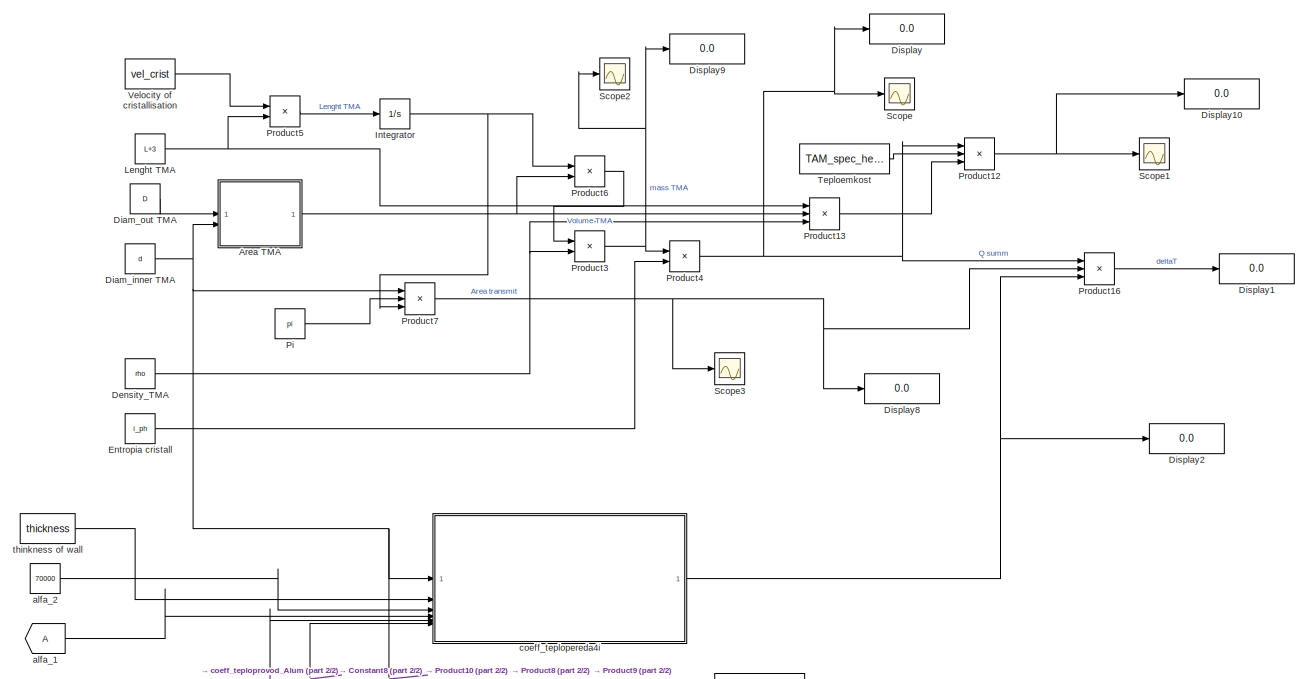
[diagram: root canvas - part 1/2, full width, middle band]
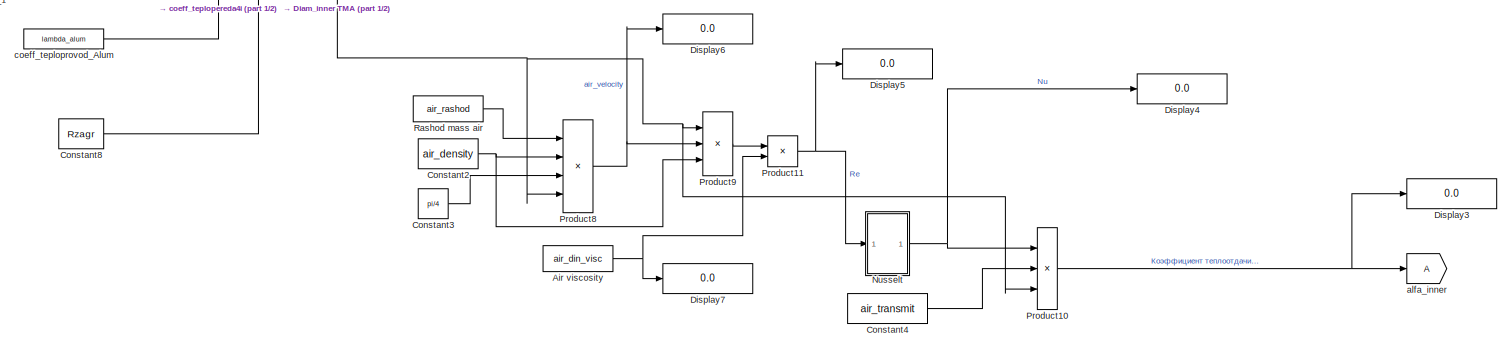
[diagram: root canvas - part 2/2, full width, bottom band]
MODEL slx_45f066141a9b
KIND model
CONFIG AbsTol = auto
CONFIG EnableMultiTasking = off
CONFIG FixedStep = auto
CONFIG MaxStep = auto
CONFIG MinStep = auto
CONFIG RelTol = 1e-3
CONFIG SampleTimeConstraint = Unconstrained
CONFIG SolverName = FixedStepAuto
CONFIG StartTime = 0.0
CONFIG StopTime = 2000
BLOCK [Constant] Air viscosity
  Value = air_din_visc
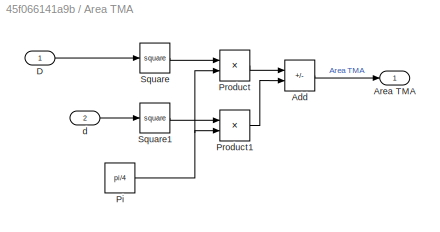
BLOCK [SubSystem] Area TMA
BLOCK [Sum] Area TMA/Add
  IconShape = rectangular
  Inputs = +-
BLOCK [Outport] Area TMA/Area TMA
BLOCK [Inport] Area TMA/D
BLOCK [Constant] Area TMA/Pi
  OutDataTypeStr = Inherit: Inherit via back propagation
  Value = pi/4
BLOCK [Product] Area TMA/Product
BLOCK [Product] Area TMA/Product1
BLOCK [Math] Area TMA/Square
  Operator = square
BLOCK [Math] Area TMA/Square1
  Operator = square
BLOCK [Inport] Area TMA/d
  Port = 2
BLOCK [Constant] Constant2
  Value = air_density
BLOCK [Constant] Constant3
  Value = pi/4
BLOCK [Constant] Constant4
  Value = air_transmit
BLOCK [Constant] Constant8
  Value = Rzagr
BLOCK [Constant] Density_TMA
  Value = rho
BLOCK [Constant] Diam_inner TMA
  Value = d
BLOCK [Constant] Diam_out TMA
  Value = D
BLOCK [Display] Display
  Decimation = 1
BLOCK [Display] Display1
  Decimation = 1
BLOCK [Display] Display10
  Decimation = 1
BLOCK [Display] Display2
  Decimation = 1
BLOCK [Display] Display3
  Decimation = 1
BLOCK [Display] Display4
  Decimation = 1
BLOCK [Display] Display5
  Decimation = 1
BLOCK [Display] Display6
  Decimation = 1
BLOCK [Display] Display7
  Decimation = 1
BLOCK [Display] Display8
  Decimation = 1
BLOCK [Display] Display9
  Decimation = 1
BLOCK [Constant] Entropia cristall
  Value = i_ph
BLOCK [Integrator] Integrator
  InitialCondition = 0.001
  LimitOutput = on
  UpperSaturationLimit = 1
BLOCK [Constant] Lenght TMA
  Value = L+3
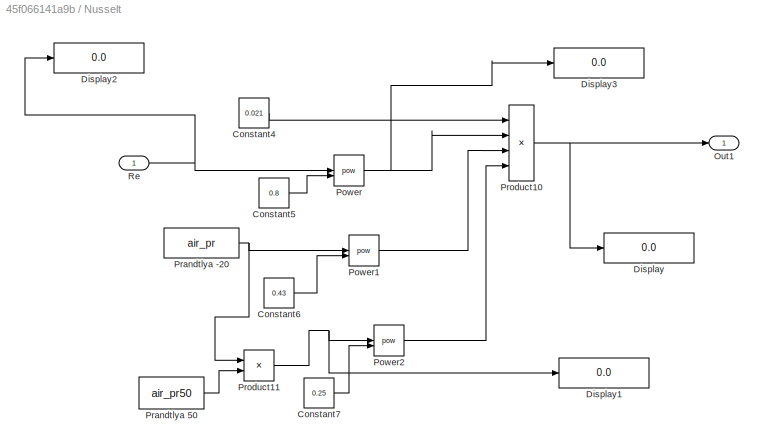
BLOCK [SubSystem] Nusselt
BLOCK [Constant] Nusselt/Constant4
  Value = 0.021
BLOCK [Constant] Nusselt/Constant5
  Value = 0.8
BLOCK [Constant] Nusselt/Constant6
  Value = 0.43
BLOCK [Constant] Nusselt/Constant7
  Value = 0.25
BLOCK [Display] Nusselt/Display
  Decimation = 1
BLOCK [Display] Nusselt/Display1
  Decimation = 1
BLOCK [Display] Nusselt/Display2
  Decimation = 1
BLOCK [Display] Nusselt/Display3
  Decimation = 1
BLOCK [Outport] Nusselt/Out1
BLOCK [Math] Nusselt/Power
  Operator = pow
BLOCK [Math] Nusselt/Power1
  Operator = pow
BLOCK [Math] Nusselt/Power2
  Operator = pow
BLOCK [Constant] Nusselt/Prandtlya -20
  Value = air_pr
BLOCK [Constant] Nusselt/Prandtlya 50
  Value = air_pr50
BLOCK [Product] Nusselt/Product10
  Inputs = 4
BLOCK [Product] Nusselt/Product11
  Inputs = */
BLOCK [Inport] Nusselt/Re
BLOCK [Constant] Pi
  OutDataTypeStr = Inherit: Inherit via back propagation
  Value = pi
BLOCK [Product] Product10
  Inputs = **/
BLOCK [Product] Product11
  Inputs = */
BLOCK [Product] Product12
  Inputs = *//
BLOCK [Product] Product13
  Inputs = 3
BLOCK [Product] Product16
  Inputs = *//
BLOCK [Product] Product3
BLOCK [Product] Product4
BLOCK [Product] Product5
  Inputs = */
BLOCK [Product] Product6
BLOCK [Product] Product7
  Inputs = 3
BLOCK [Product] Product8
  Inputs = *///
BLOCK [Product] Product9
  Inputs = 3
BLOCK [Constant] Rashod mass air
  Value = air_rashod
BLOCK [Scope] Scope
  Floating = off
  NumInputPorts = 1
  ScopeSpecificationString = Simulink.scopes.TimeScopeBlockCfg('CurrentConfiguration', extmgr.ConfigurationSet(extmgr.Configuration('Core','General UI',true),extmgr.Configuration('Core','Source UI',true),extmgr.Configuration('Sources','WiredSimulink',true),extmgr.Configuration('Visuals','Time Domain',true,'SerializedDisplays',{struct('MinYLimReal','-340470.10383','MaxYLimReal','3064230.9345','YLabelReal','','MinYLimMag','    ...<+1539ch>
BLOCK [Scope] Scope1
  Floating = off
  NumInputPorts = 1
  ScopeSpecificationString = Simulink.scopes.TimeScopeBlockCfg('CurrentConfiguration', extmgr.ConfigurationSet(extmgr.Configuration('Core','General UI',true),extmgr.Configuration('Core','Source UI',true),extmgr.Configuration('Sources','WiredSimulink',true,'DataLoggingVariableName','ScopeData1'),extmgr.Configuration('Visuals','Time Domain',true,'SerializedDisplays',{struct('MinYLimReal','-18.0625','MaxYLimReal','162.5625','YLa...<+1547ch>
BLOCK [Scope] Scope2
  Floating = off
  NumInputPorts = 1
  ScopeSpecificationString = Simulink.scopes.TimeScopeBlockCfg('CurrentConfiguration', extmgr.ConfigurationSet(extmgr.Configuration('Core','General UI',true),extmgr.Configuration('Core','Source UI',true),extmgr.Configuration('Sources','WiredSimulink',true,'DataLoggingVariableName','ScopeData1'),extmgr.Configuration('Visuals','Time Domain',true,'SerializedDisplays',{struct('MinYLimReal','-1.16749','MaxYLimReal','10.6017','YLab...<+1456ch>
BLOCK [Scope] Scope3
  Floating = off
  NumInputPorts = 1
  ScopeSpecificationString = Simulink.scopes.TimeScopeBlockCfg('CurrentConfiguration', extmgr.ConfigurationSet(extmgr.Configuration('Core','General UI',true),extmgr.Configuration('Core','Source UI',true),extmgr.Configuration('Sources','WiredSimulink',true,'DataLoggingVariableName','ScopeData2'),extmgr.Configuration('Visuals','Time Domain',true,'SerializedDisplays',{struct('MinYLimReal','-0.01946','MaxYLimReal','0.17669','YLab...<+1461ch>
BLOCK [Constant] Teploemkost
  Value = TAM_spec_heat
BLOCK [Constant] Velocity of cristallisation
  Value = vel_crist
BLOCK [From] alfa_1
BLOCK [Constant] alfa_2
  Value = 70000
BLOCK [Goto] alfa_inner
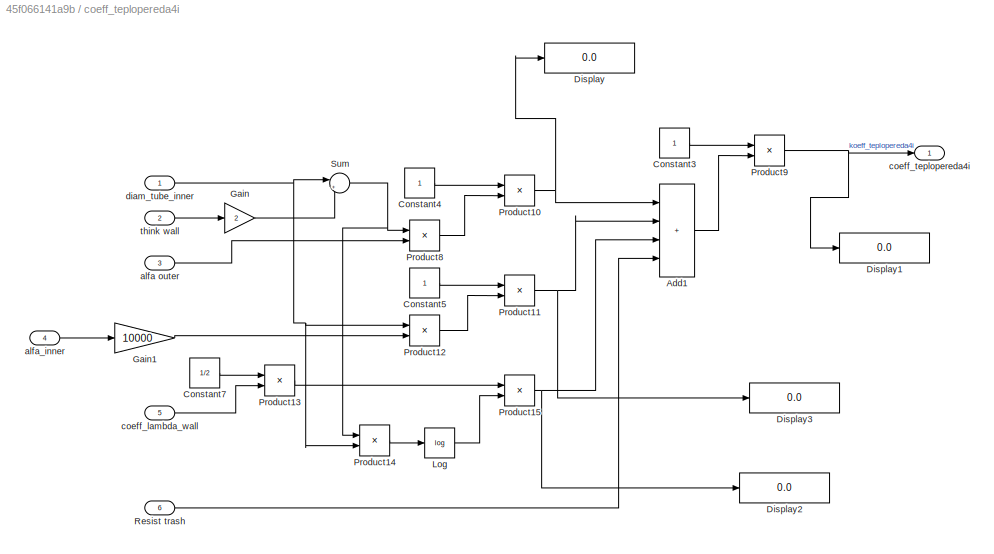
BLOCK [SubSystem] coeff_teplopereda4i
BLOCK [Sum] coeff_teplopereda4i/Add1
  IconShape = rectangular
  Inputs = ++++
BLOCK [Constant] coeff_teplopereda4i/Constant3
BLOCK [Constant] coeff_teplopereda4i/Constant4
BLOCK [Constant] coeff_teplopereda4i/Constant5
BLOCK [Constant] coeff_teplopereda4i/Constant7
  Value = 1/2
BLOCK [Display] coeff_teplopereda4i/Display
  Decimation = 1
BLOCK [Display] coeff_teplopereda4i/Display1
  Decimation = 1
BLOCK [Display] coeff_teplopereda4i/Display2
  Decimation = 1
BLOCK [Display] coeff_teplopereda4i/Display3
  Decimation = 1
BLOCK [Gain] coeff_teplopereda4i/Gain
  Gain = 2
BLOCK [Gain] coeff_teplopereda4i/Gain1
  Gain = 10000
BLOCK [Math] coeff_teplopereda4i/Log
  Operator = log
BLOCK [Product] coeff_teplopereda4i/Product10
  Inputs = */
BLOCK [Product] coeff_teplopereda4i/Product11
  Inputs = */
BLOCK [Product] coeff_teplopereda4i/Product12
BLOCK [Product] coeff_teplopereda4i/Product13
  Inputs = */
BLOCK [Product] coeff_teplopereda4i/Product14
  Inputs = */
BLOCK [Product] coeff_teplopereda4i/Product15
BLOCK [Product] coeff_teplopereda4i/Product8
BLOCK [Product] coeff_teplopereda4i/Product9
  Inputs = */
BLOCK [Inport] coeff_teplopereda4i/Resist trash
  Port = 6
BLOCK [Sum] coeff_teplopereda4i/Sum
  Inputs = |++
BLOCK [Inport] coeff_teplopereda4i/alfa outer
  Port = 3
BLOCK [Inport] coeff_teplopereda4i/alfa_inner
  Port = 4
BLOCK [Inport] coeff_teplopereda4i/coeff_lambda_wall
  Port = 5
BLOCK [Outport] coeff_teplopereda4i/coeff_teplopereda4i
BLOCK [Inport] coeff_teplopereda4i/diam_tube_inner
BLOCK [Inport] coeff_teplopereda4i/think wall
  Port = 2
BLOCK [Constant] coeff_teploprovod_Alum
  Value = lambda_alum
BLOCK [Constant] thinkness of wall
  Value = thickness
NET Air viscosity:1 -> Display7:1, Product11:2
LINE Area TMA/Add:1 -> Area TMA/Area TMA:1
LINE Area TMA/D:1 -> Area TMA/Square:1
NET Area TMA/Pi:1 -> Area TMA/Product1:2, Area TMA/Product:2
LINE Area TMA/Product1:1 -> Area TMA/Add:2
LINE Area TMA/Product:1 -> Area TMA/Add:1
LINE Area TMA/Square1:1 -> Area TMA/Product1:1
LINE Area TMA/Square:1 -> Area TMA/Product:1
LINE Area TMA/d:1 -> Area TMA/Square1:1
NET Area TMA:1 -> Product13:2, Product6:2
NET Constant2:1 -> Product8:2, Product9:3
LINE Constant3:1 -> Product8:3
LINE Constant4:1 -> Product10:2
LINE Constant8:1 -> coeff_teplopereda4i:6
NET Density_TMA:1 -> Product13:3, Product3:2
NET Diam_inner TMA:1 -> Area TMA:2, Product10:3, Product7:1, Product8:4, Product9:1, coeff_teplopereda4i:1
LINE Diam_out TMA:1 -> Area TMA:1
LINE Entropia cristall:1 -> Product4:2
NET Integrator:1 -> Product6:1, Product7:3
NET Lenght TMA:1 -> Product13:1, Product5:2
LINE Nusselt/Constant4:1 -> Nusselt/Product10:1
LINE Nusselt/Constant5:1 -> Nusselt/Power:2
LINE Nusselt/Constant6:1 -> Nusselt/Power1:2
LINE Nusselt/Constant7:1 -> Nusselt/Power2:2
LINE Nusselt/Power1:1 -> Nusselt/Product10:3
LINE Nusselt/Power2:1 -> Nusselt/Product10:4
NET Nusselt/Power:1 -> Nusselt/Display3:1, Nusselt/Product10:2
NET Nusselt/Prandtlya -20:1 -> Nusselt/Power1:1, Nusselt/Product11:1
LINE Nusselt/Prandtlya 50:1 -> Nusselt/Product11:2
NET Nusselt/Product10:1 -> Nusselt/Display:1, Nusselt/Out1:1
NET Nusselt/Product11:1 -> Nusselt/Display1:1, Nusselt/Power2:1
NET Nusselt/Re:1 -> Nusselt/Display2:1, Nusselt/Power:1
NET Nusselt:1 -> Display4:1, Product10:1
LINE Pi:1 -> Product7:2
NET Product10:1 -> Display3:1, alfa_inner:1
NET Product11:1 -> Display5:1, Nusselt:1
NET Product12:1 -> Display10:1, Scope1:1
LINE Product13:1 -> Product12:3
LINE Product16:1 -> Display1:1
NET Product3:1 -> Display9:1, Product4:1, Scope2:1
NET Product4:1 -> Display:1, Product12:1, Product16:1, Scope:1
LINE Product5:1 -> Integrator:1
LINE Product6:1 -> Product3:1
NET Product7:1 -> Display8:1, Product16:2, Scope3:1
NET Product8:1 -> Display6:1, Product9:2
LINE Product9:1 -> Product11:1
LINE Rashod mass air:1 -> Product8:1
LINE Teploemkost:1 -> Product12:2
LINE Velocity of cristallisation:1 -> Product5:1
LINE alfa_1:1 -> coeff_teplopereda4i:4
LINE alfa_2:1 -> coeff_teplopereda4i:3
LINE coeff_teplopereda4i/Add1:1 -> coeff_teplopereda4i/Product9:2
LINE coeff_teplopereda4i/Constant3:1 -> coeff_teplopereda4i/Product9:1
LINE coeff_teplopereda4i/Constant4:1 -> coeff_teplopereda4i/Product10:1
LINE coeff_teplopereda4i/Constant5:1 -> coeff_teplopereda4i/Product11:1
LINE coeff_teplopereda4i/Constant7:1 -> coeff_teplopereda4i/Product13:1
LINE coeff_teplopereda4i/Gain1:1 -> coeff_teplopereda4i/Product12:2
LINE coeff_teplopereda4i/Gain:1 -> coeff_teplopereda4i/Sum:2
LINE coeff_teplopereda4i/Log:1 -> coeff_teplopereda4i/Product15:2
NET coeff_teplopereda4i/Product10:1 -> coeff_teplopereda4i/Add1:1, coeff_teplopereda4i/Display:1
NET coeff_teplopereda4i/Product11:1 -> coeff_teplopereda4i/Add1:2, coeff_teplopereda4i/Display3:1
LINE coeff_teplopereda4i/Product12:1 -> coeff_teplopereda4i/Product11:2
LINE coeff_teplopereda4i/Product13:1 -> coeff_teplopereda4i/Product15:1
LINE coeff_teplopereda4i/Product14:1 -> coeff_teplopereda4i/Log:1
NET coeff_teplopereda4i/Product15:1 -> coeff_teplopereda4i/Add1:3, coeff_teplopereda4i/Display2:1
LINE coeff_teplopereda4i/Product8:1 -> coeff_teplopereda4i/Product10:2
NET coeff_teplopereda4i/Product9:1 -> coeff_teplopereda4i/Display1:1, coeff_teplopereda4i/coeff_teplopereda4i:1
LINE coeff_teplopereda4i/Resist trash:1 -> coeff_teplopereda4i/Add1:4
NET coeff_teplopereda4i/Sum:1 -> coeff_teplopereda4i/Product14:1, coeff_teplopereda4i/Product8:1
LINE coeff_teplopereda4i/alfa outer:1 -> coeff_teplopereda4i/Product8:2
LINE coeff_teplopereda4i/alfa_inner:1 -> coeff_teplopereda4i/Gain1:1
LINE coeff_teplopereda4i/coeff_lambda_wall:1 -> coeff_teplopereda4i/Product13:2
NET coeff_teplopereda4i/diam_tube_inner:1 -> coeff_teplopereda4i/Product12:1, coeff_teplopereda4i/Product14:2, coeff_teplopereda4i/Sum:1
LINE coeff_teplopereda4i/think wall:1 -> coeff_teplopereda4i/Gain:1
NET coeff_teplopereda4i:1 -> Display2:1, Product16:3
LINE coeff_teploprovod_Alum:1 -> coeff_teplopereda4i:5
LINE thinkness of wall:1 -> coeff_teplopereda4i:2
note: NET lines group one-source signal fan-out (src -> all destinations, sorted); 1:1 wires keep LINE
